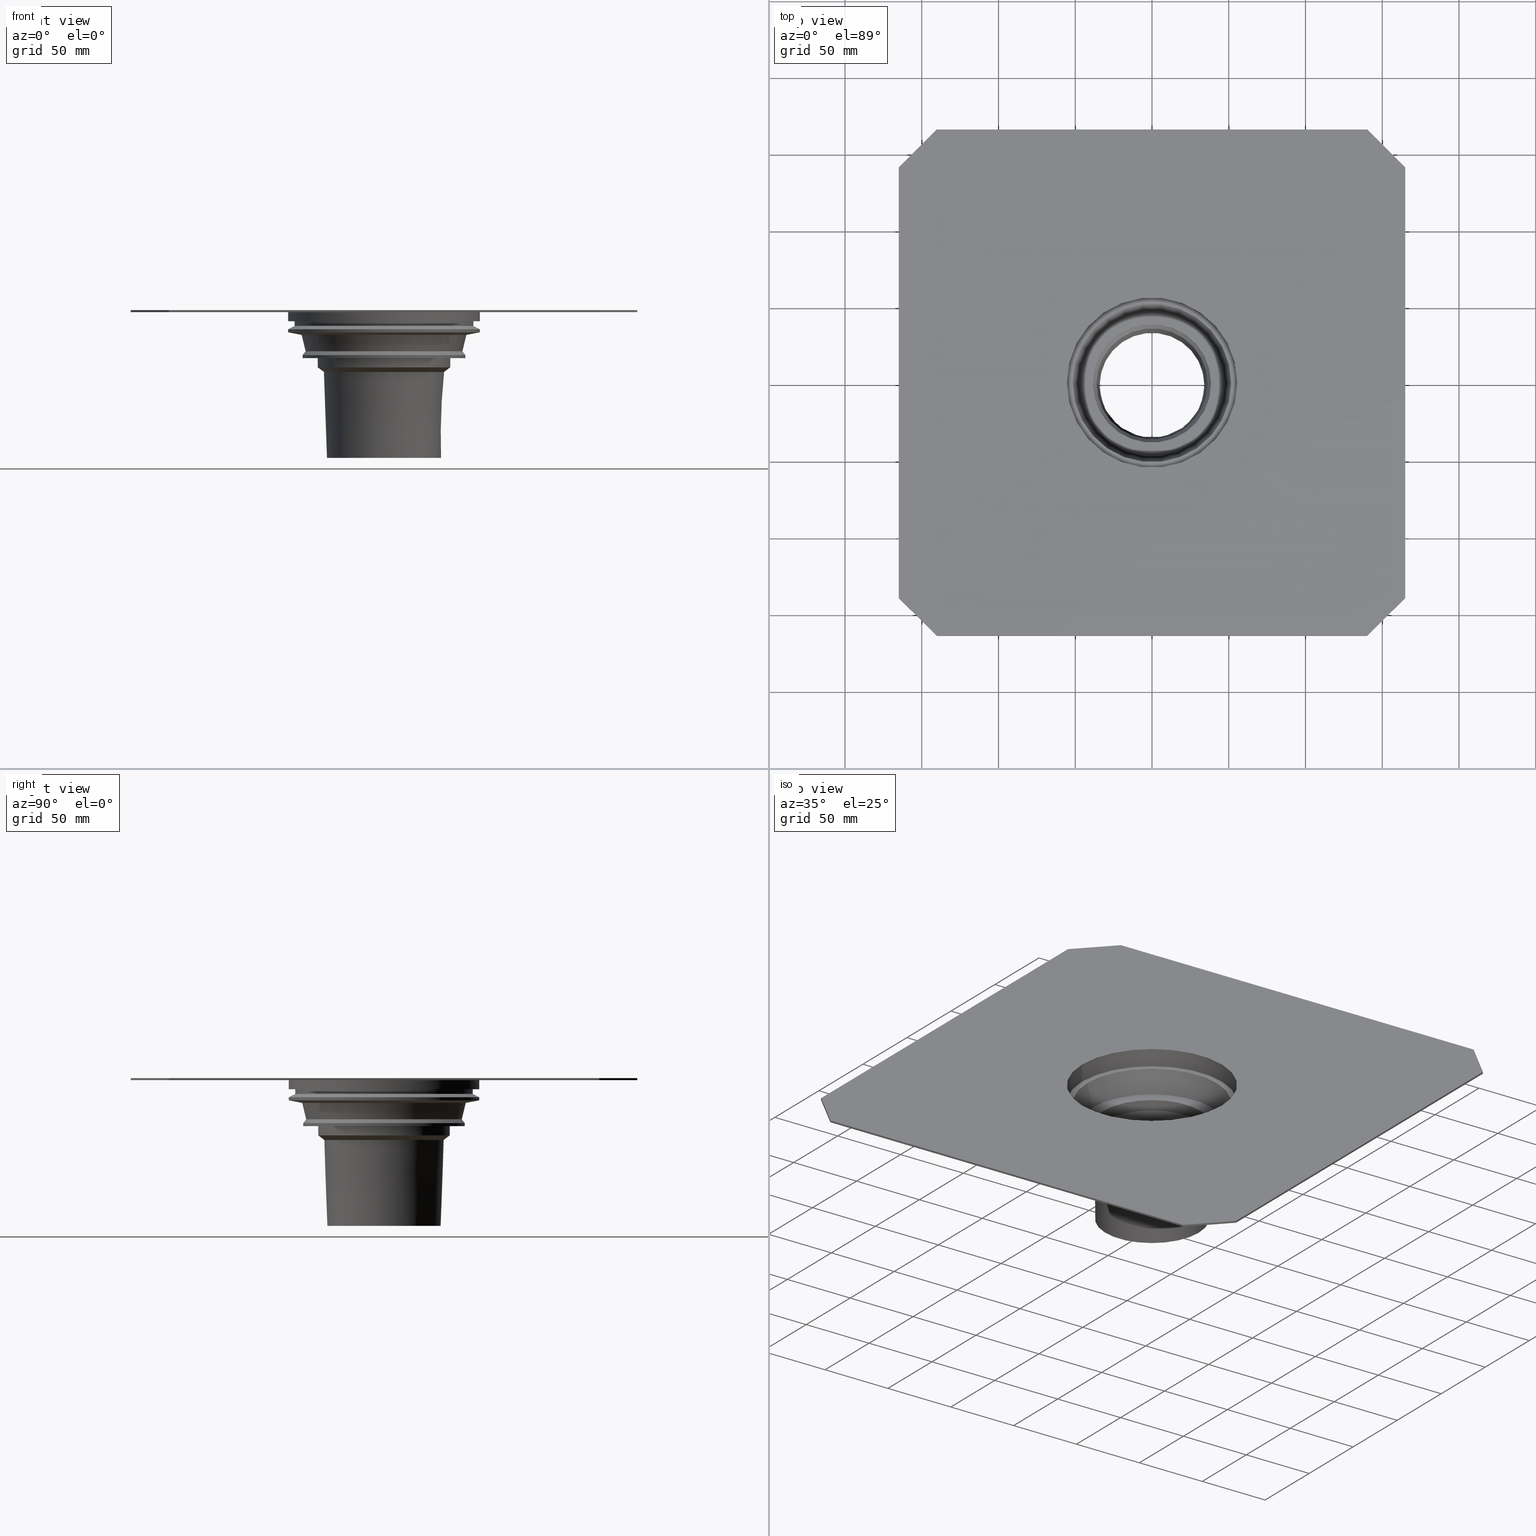
[diagram: canonical four-view strip — front | top / right | iso, engineering-drawing reading convention]
A machine part, canonical four-view strip (front | top / right | iso — engineering-drawing reading convention). The complete STEP part file that produces these views, byte-faithful:
ISO-10303-21;
HEADER;
/* Generated by software containing ST-Developer
 * from STEP Tools, Inc. (www.steptools.com) 
 */
/* OPTION: using custom renumber hook */

FILE_DESCRIPTION(
/* description */ ('STEP AP214'),
/* implementation_level */ '2;1');

FILE_NAME(
/* name */ '482087001(1)',
/* time_stamp */ '2022-12-23T08:21:58+01:00',
/* author */ ('License CC BY-ND 4.0'),
/* organization */ ('CADENAS'),
/* preprocessor_version */ 'ST-DEVELOPER v18.102',
/* originating_system */ 'PARTsolutions',
/* authorisation */ '  ');

FILE_SCHEMA (('AUTOMOTIVE_DESIGN {1 0 10303 214 3 1 1}'));
ENDSEC;

DATA;
#10=PROPERTY_DEFINITION_REPRESENTATION(#14,#12);
#11=PROPERTY_DEFINITION_REPRESENTATION(#15,#13);
#12=REPRESENTATION('',(#16),#751);
#13=REPRESENTATION('',(#17),#751);
#14=PROPERTY_DEFINITION('pmi validation property','',#756);
#15=PROPERTY_DEFINITION('pmi validation property','',#756);
#16=VALUE_REPRESENTATION_ITEM('number of annotations',COUNT_MEASURE(0.));
#17=VALUE_REPRESENTATION_ITEM('number of views',COUNT_MEASURE(0.));
#18=SHAPE_REPRESENTATION_RELATIONSHIP('','',#447,#19);
#19=ADVANCED_BREP_SHAPE_REPRESENTATION('',(#445),#751);
#20=CONICAL_SURFACE('',#467,51.5,0.237631518816238);
#21=CONICAL_SURFACE('',#473,38.498,0.532477589012008);
#22=CONICAL_SURFACE('',#475,36.141,0.0356991126793241);
#23=CONICAL_SURFACE('',#479,37.143,0.0356991126793241);
#24=CONICAL_SURFACE('',#481,39.143,0.927295218001613);
#25=CONICAL_SURFACE('',#489,52.998,0.665807706788415);
#26=CONICAL_SURFACE('',#491,51.065,0.237503939046405);
#27=CONICAL_SURFACE('',#493,53.653,1.38484091809921);
#28=CONICAL_SURFACE('',#497,62.498,1.09591323553613);
#29=LINE('',#641,#53);
#30=LINE('',#644,#54);
#31=LINE('',#646,#55);
#32=LINE('',#648,#56);
#33=LINE('',#650,#57);
#34=LINE('',#652,#58);
#35=LINE('',#654,#59);
#36=LINE('',#656,#60);
#37=LINE('',#658,#61);
#38=LINE('',#660,#62);
#39=LINE('',#662,#63);
#40=LINE('',#664,#64);
#41=LINE('',#666,#65);
#42=LINE('',#668,#66);
#43=LINE('',#670,#67);
#44=LINE('',#672,#68);
#45=LINE('',#674,#69);
#46=LINE('',#676,#70);
#47=LINE('',#678,#71);
#48=LINE('',#680,#72);
#49=LINE('',#682,#73);
#50=LINE('',#684,#74);
#51=LINE('',#686,#75);
#52=LINE('',#687,#76);
#53=VECTOR('',#512,1000.);
#54=VECTOR('',#513,1000.);
#55=VECTOR('',#514,1000.);
#56=VECTOR('',#515,1000.);
#57=VECTOR('',#518,1000.);
#58=VECTOR('',#519,1000.);
#59=VECTOR('',#520,1000.);
#60=VECTOR('',#523,1000.);
#61=VECTOR('',#524,1000.);
#62=VECTOR('',#525,1000.);
#63=VECTOR('',#528,1000.);
#64=VECTOR('',#529,1000.);
#65=VECTOR('',#530,1000.);
#66=VECTOR('',#533,1000.);
#67=VECTOR('',#534,1000.);
#68=VECTOR('',#535,1000.);
#69=VECTOR('',#538,1000.);
#70=VECTOR('',#539,1000.);
#71=VECTOR('',#540,1000.);
#72=VECTOR('',#543,1000.);
#73=VECTOR('',#544,1000.);
#74=VECTOR('',#545,1000.);
#75=VECTOR('',#548,1000.);
#76=VECTOR('',#549,1000.);
#77=PLANE('',#452);
#78=PLANE('',#453);
#79=PLANE('',#454);
#80=PLANE('',#455);
#81=PLANE('',#456);
#82=PLANE('',#457);
#83=PLANE('',#458);
#84=PLANE('',#459);
#85=PLANE('',#460);
#86=PLANE('',#465);
#87=PLANE('',#469);
#88=PLANE('',#477);
#89=PLANE('',#485);
#90=PLANE('',#500);
#91=PLANE('',#501);
#92=ORIENTED_EDGE('',*,*,#184,.T.);
#93=ORIENTED_EDGE('',*,*,#185,.T.);
#94=ORIENTED_EDGE('',*,*,#186,.F.);
#95=ORIENTED_EDGE('',*,*,#187,.T.);
#96=ORIENTED_EDGE('',*,*,#188,.T.);
#97=ORIENTED_EDGE('',*,*,#189,.F.);
#98=ORIENTED_EDGE('',*,*,#190,.F.);
#99=ORIENTED_EDGE('',*,*,#189,.T.);
#100=ORIENTED_EDGE('',*,*,#191,.T.);
#101=ORIENTED_EDGE('',*,*,#192,.F.);
#102=ORIENTED_EDGE('',*,*,#193,.F.);
#103=ORIENTED_EDGE('',*,*,#192,.T.);
#104=ORIENTED_EDGE('',*,*,#194,.T.);
#105=ORIENTED_EDGE('',*,*,#195,.F.);
#106=ORIENTED_EDGE('',*,*,#196,.F.);
#107=ORIENTED_EDGE('',*,*,#195,.T.);
#108=ORIENTED_EDGE('',*,*,#197,.T.);
#109=ORIENTED_EDGE('',*,*,#198,.F.);
#110=ORIENTED_EDGE('',*,*,#199,.F.);
#111=ORIENTED_EDGE('',*,*,#198,.T.);
#112=ORIENTED_EDGE('',*,*,#200,.T.);
#113=ORIENTED_EDGE('',*,*,#201,.F.);
#114=ORIENTED_EDGE('',*,*,#202,.F.);
#115=ORIENTED_EDGE('',*,*,#201,.T.);
#116=ORIENTED_EDGE('',*,*,#203,.T.);
#117=ORIENTED_EDGE('',*,*,#204,.F.);
#118=ORIENTED_EDGE('',*,*,#205,.F.);
#119=ORIENTED_EDGE('',*,*,#204,.T.);
#120=ORIENTED_EDGE('',*,*,#206,.T.);
#121=ORIENTED_EDGE('',*,*,#207,.F.);
#122=ORIENTED_EDGE('',*,*,#208,.F.);
#123=ORIENTED_EDGE('',*,*,#207,.T.);
#124=ORIENTED_EDGE('',*,*,#209,.T.);
#125=ORIENTED_EDGE('',*,*,#187,.F.);
#126=ORIENTED_EDGE('',*,*,#210,.T.);
#127=ORIENTED_EDGE('',*,*,#211,.F.);
#128=ORIENTED_EDGE('',*,*,#212,.T.);
#129=ORIENTED_EDGE('',*,*,#210,.F.);
#130=ORIENTED_EDGE('',*,*,#213,.T.);
#131=ORIENTED_EDGE('',*,*,#184,.F.);
#132=ORIENTED_EDGE('',*,*,#214,.T.);
#133=ORIENTED_EDGE('',*,*,#213,.F.);
#134=ORIENTED_EDGE('',*,*,#215,.T.);
#135=ORIENTED_EDGE('',*,*,#214,.F.);
#136=ORIENTED_EDGE('',*,*,#216,.T.);
#137=ORIENTED_EDGE('',*,*,#215,.F.);
#138=ORIENTED_EDGE('',*,*,#217,.T.);
#139=ORIENTED_EDGE('',*,*,#216,.F.);
#140=ORIENTED_EDGE('',*,*,#218,.T.);
#141=ORIENTED_EDGE('',*,*,#217,.F.);
#142=ORIENTED_EDGE('',*,*,#219,.T.);
#143=ORIENTED_EDGE('',*,*,#218,.F.);
#144=ORIENTED_EDGE('',*,*,#220,.T.);
#145=ORIENTED_EDGE('',*,*,#219,.F.);
#146=ORIENTED_EDGE('',*,*,#221,.T.);
#147=ORIENTED_EDGE('',*,*,#220,.F.);
#148=ORIENTED_EDGE('',*,*,#222,.T.);
#149=ORIENTED_EDGE('',*,*,#221,.F.);
#150=ORIENTED_EDGE('',*,*,#223,.T.);
#151=ORIENTED_EDGE('',*,*,#222,.F.);
#152=ORIENTED_EDGE('',*,*,#224,.T.);
#153=ORIENTED_EDGE('',*,*,#223,.F.);
#154=ORIENTED_EDGE('',*,*,#225,.T.);
#155=ORIENTED_EDGE('',*,*,#224,.F.);
#156=ORIENTED_EDGE('',*,*,#226,.T.);
#157=ORIENTED_EDGE('',*,*,#225,.F.);
#158=ORIENTED_EDGE('',*,*,#227,.T.);
#159=ORIENTED_EDGE('',*,*,#226,.F.);
#160=ORIENTED_EDGE('',*,*,#228,.T.);
#161=ORIENTED_EDGE('',*,*,#227,.F.);
#162=ORIENTED_EDGE('',*,*,#229,.T.);
#163=ORIENTED_EDGE('',*,*,#228,.F.);
#164=ORIENTED_EDGE('',*,*,#211,.T.);
#165=ORIENTED_EDGE('',*,*,#229,.F.);
#166=ORIENTED_EDGE('',*,*,#212,.F.);
#167=ORIENTED_EDGE('',*,*,#188,.F.);
#168=ORIENTED_EDGE('',*,*,#209,.F.);
#169=ORIENTED_EDGE('',*,*,#206,.F.);
#170=ORIENTED_EDGE('',*,*,#203,.F.);
#171=ORIENTED_EDGE('',*,*,#200,.F.);
#172=ORIENTED_EDGE('',*,*,#197,.F.);
#173=ORIENTED_EDGE('',*,*,#194,.F.);
#174=ORIENTED_EDGE('',*,*,#191,.F.);
#175=ORIENTED_EDGE('',*,*,#185,.F.);
#176=ORIENTED_EDGE('',*,*,#186,.T.);
#177=ORIENTED_EDGE('',*,*,#190,.T.);
#178=ORIENTED_EDGE('',*,*,#193,.T.);
#179=ORIENTED_EDGE('',*,*,#196,.T.);
#180=ORIENTED_EDGE('',*,*,#199,.T.);
#181=ORIENTED_EDGE('',*,*,#202,.T.);
#182=ORIENTED_EDGE('',*,*,#205,.T.);
#183=ORIENTED_EDGE('',*,*,#208,.T.);
#184=EDGE_CURVE('',#230,#230,#268,.T.);
#185=EDGE_CURVE('',#231,#231,#269,.T.);
#186=EDGE_CURVE('',#232,#233,#29,.T.);
#187=EDGE_CURVE('',#232,#234,#30,.T.);
#188=EDGE_CURVE('',#234,#235,#31,.T.);
#189=EDGE_CURVE('',#233,#235,#32,.T.);
#190=EDGE_CURVE('',#233,#236,#33,.T.);
#191=EDGE_CURVE('',#235,#237,#34,.T.);
#192=EDGE_CURVE('',#236,#237,#35,.T.);
#193=EDGE_CURVE('',#236,#238,#36,.T.);
#194=EDGE_CURVE('',#237,#239,#37,.T.);
#195=EDGE_CURVE('',#238,#239,#38,.T.);
#196=EDGE_CURVE('',#238,#240,#39,.T.);
#197=EDGE_CURVE('',#239,#241,#40,.T.);
#198=EDGE_CURVE('',#240,#241,#41,.T.);
#199=EDGE_CURVE('',#240,#242,#42,.T.);
#200=EDGE_CURVE('',#241,#243,#43,.T.);
#201=EDGE_CURVE('',#242,#243,#44,.T.);
#202=EDGE_CURVE('',#242,#244,#45,.T.);
#203=EDGE_CURVE('',#243,#245,#46,.T.);
#204=EDGE_CURVE('',#244,#245,#47,.T.);
#205=EDGE_CURVE('',#244,#246,#48,.T.);
#206=EDGE_CURVE('',#245,#247,#49,.T.);
#207=EDGE_CURVE('',#246,#247,#50,.T.);
#208=EDGE_CURVE('',#246,#232,#51,.T.);
#209=EDGE_CURVE('',#247,#234,#52,.T.);
#210=EDGE_CURVE('',#248,#248,#270,.T.);
#211=EDGE_CURVE('',#249,#249,#271,.T.);
#212=EDGE_CURVE('',#250,#250,#272,.F.);
#213=EDGE_CURVE('',#251,#251,#273,.T.);
#214=EDGE_CURVE('',#252,#252,#274,.T.);
#215=EDGE_CURVE('',#253,#253,#275,.T.);
#216=EDGE_CURVE('',#254,#254,#276,.T.);
#217=EDGE_CURVE('',#255,#255,#277,.T.);
#218=EDGE_CURVE('',#256,#256,#278,.T.);
#219=EDGE_CURVE('',#257,#257,#279,.T.);
#220=EDGE_CURVE('',#258,#258,#280,.T.);
#221=EDGE_CURVE('',#259,#259,#281,.T.);
#222=EDGE_CURVE('',#260,#260,#282,.T.);
#223=EDGE_CURVE('',#261,#261,#283,.T.);
#224=EDGE_CURVE('',#262,#262,#284,.T.);
#225=EDGE_CURVE('',#263,#263,#285,.T.);
#226=EDGE_CURVE('',#264,#264,#286,.T.);
#227=EDGE_CURVE('',#265,#265,#287,.T.);
#228=EDGE_CURVE('',#266,#266,#288,.T.);
#229=EDGE_CURVE('',#267,#267,#289,.T.);
#230=VERTEX_POINT('',#637);
#231=VERTEX_POINT('',#639);
#232=VERTEX_POINT('',#642);
#233=VERTEX_POINT('',#643);
#234=VERTEX_POINT('',#645);
#235=VERTEX_POINT('',#647);
#236=VERTEX_POINT('',#651);
#237=VERTEX_POINT('',#653);
#238=VERTEX_POINT('',#657);
#239=VERTEX_POINT('',#659);
#240=VERTEX_POINT('',#663);
#241=VERTEX_POINT('',#665);
#242=VERTEX_POINT('',#669);
#243=VERTEX_POINT('',#671);
#244=VERTEX_POINT('',#675);
#245=VERTEX_POINT('',#677);
#246=VERTEX_POINT('',#681);
#247=VERTEX_POINT('',#683);
#248=VERTEX_POINT('',#690);
#249=VERTEX_POINT('',#692);
#250=VERTEX_POINT('',#695);
#251=VERTEX_POINT('',#698);
#252=VERTEX_POINT('',#701);
#253=VERTEX_POINT('',#704);
#254=VERTEX_POINT('',#707);
#255=VERTEX_POINT('',#710);
#256=VERTEX_POINT('',#713);
#257=VERTEX_POINT('',#716);
#258=VERTEX_POINT('',#719);
#259=VERTEX_POINT('',#722);
#260=VERTEX_POINT('',#725);
#261=VERTEX_POINT('',#728);
#262=VERTEX_POINT('',#731);
#263=VERTEX_POINT('',#734);
#264=VERTEX_POINT('',#737);
#265=VERTEX_POINT('',#740);
#266=VERTEX_POINT('',#743);
#267=VERTEX_POINT('',#746);
#268=CIRCLE('',#450,55.5);
#269=CIRCLE('',#451,55.5);
#270=CIRCLE('',#461,62.5);
#271=CIRCLE('',#462,58.25);
#272=CIRCLE('',#464,62.5);
#273=CIRCLE('',#466,51.5);
#274=CIRCLE('',#468,47.498);
#275=CIRCLE('',#470,38.498);
#276=CIRCLE('',#472,38.498);
#277=CIRCLE('',#474,36.141);
#278=CIRCLE('',#476,34.141);
#279=CIRCLE('',#478,37.143);
#280=CIRCLE('',#480,39.143);
#281=CIRCLE('',#482,43.143);
#282=CIRCLE('',#484,43.143);
#283=CIRCLE('',#486,52.998);
#284=CIRCLE('',#488,52.998);
#285=CIRCLE('',#490,51.065);
#286=CIRCLE('',#492,53.653);
#287=CIRCLE('',#494,62.498);
#288=CIRCLE('',#496,62.498);
#289=CIRCLE('',#498,58.25);
#290=EDGE_LOOP('',(#92));
#291=EDGE_LOOP('',(#93));
#292=EDGE_LOOP('',(#94,#95,#96,#97));
#293=EDGE_LOOP('',(#98,#99,#100,#101));
#294=EDGE_LOOP('',(#102,#103,#104,#105));
#295=EDGE_LOOP('',(#106,#107,#108,#109));
#296=EDGE_LOOP('',(#110,#111,#112,#113));
#297=EDGE_LOOP('',(#114,#115,#116,#117));
#298=EDGE_LOOP('',(#118,#119,#120,#121));
#299=EDGE_LOOP('',(#122,#123,#124,#125));
#300=EDGE_LOOP('',(#126));
#301=EDGE_LOOP('',(#127));
#302=EDGE_LOOP('',(#128));
#303=EDGE_LOOP('',(#129));
#304=EDGE_LOOP('',(#130));
#305=EDGE_LOOP('',(#131));
#306=EDGE_LOOP('',(#132));
#307=EDGE_LOOP('',(#133));
#308=EDGE_LOOP('',(#134));
#309=EDGE_LOOP('',(#135));
#310=EDGE_LOOP('',(#136));
#311=EDGE_LOOP('',(#137));
#312=EDGE_LOOP('',(#138));
#313=EDGE_LOOP('',(#139));
#314=EDGE_LOOP('',(#140));
#315=EDGE_LOOP('',(#141));
#316=EDGE_LOOP('',(#142));
#317=EDGE_LOOP('',(#143));
#318=EDGE_LOOP('',(#144));
#319=EDGE_LOOP('',(#145));
#320=EDGE_LOOP('',(#146));
#321=EDGE_LOOP('',(#147));
#322=EDGE_LOOP('',(#148));
#323=EDGE_LOOP('',(#149));
#324=EDGE_LOOP('',(#150));
#325=EDGE_LOOP('',(#151));
#326=EDGE_LOOP('',(#152));
#327=EDGE_LOOP('',(#153));
#328=EDGE_LOOP('',(#154));
#329=EDGE_LOOP('',(#155));
#330=EDGE_LOOP('',(#156));
#331=EDGE_LOOP('',(#157));
#332=EDGE_LOOP('',(#158));
#333=EDGE_LOOP('',(#159));
#334=EDGE_LOOP('',(#160));
#335=EDGE_LOOP('',(#161));
#336=EDGE_LOOP('',(#162));
#337=EDGE_LOOP('',(#163));
#338=EDGE_LOOP('',(#164));
#339=EDGE_LOOP('',(#165));
#340=EDGE_LOOP('',(#166));
#341=EDGE_LOOP('',(#167,#168,#169,#170,#171,#172,#173,#174));
#342=EDGE_LOOP('',(#175));
#343=EDGE_LOOP('',(#176,#177,#178,#179,#180,#181,#182,#183));
#344=FACE_BOUND('',#290,.T.);
#345=FACE_BOUND('',#291,.T.);
#346=FACE_BOUND('',#292,.T.);
#347=FACE_BOUND('',#293,.T.);
#348=FACE_BOUND('',#294,.T.);
#349=FACE_BOUND('',#295,.T.);
#350=FACE_BOUND('',#296,.T.);
#351=FACE_BOUND('',#297,.T.);
#352=FACE_BOUND('',#298,.T.);
#353=FACE_BOUND('',#299,.T.);
#354=FACE_BOUND('',#300,.T.);
#355=FACE_BOUND('',#301,.T.);
#356=FACE_BOUND('',#302,.T.);
#357=FACE_BOUND('',#303,.T.);
#358=FACE_BOUND('',#304,.T.);
#359=FACE_BOUND('',#305,.T.);
#360=FACE_BOUND('',#306,.T.);
#361=FACE_BOUND('',#307,.T.);
#362=FACE_BOUND('',#308,.T.);
#363=FACE_BOUND('',#309,.T.);
#364=FACE_BOUND('',#310,.T.);
#365=FACE_BOUND('',#311,.T.);
#366=FACE_BOUND('',#312,.T.);
#367=FACE_BOUND('',#313,.T.);
#368=FACE_BOUND('',#314,.T.);
#369=FACE_BOUND('',#315,.T.);
#370=FACE_BOUND('',#316,.T.);
#371=FACE_BOUND('',#317,.T.);
#372=FACE_BOUND('',#318,.T.);
#373=FACE_BOUND('',#319,.T.);
#374=FACE_BOUND('',#320,.T.);
#375=FACE_BOUND('',#321,.T.);
#376=FACE_BOUND('',#322,.T.);
#377=FACE_BOUND('',#323,.T.);
#378=FACE_BOUND('',#324,.T.);
#379=FACE_BOUND('',#325,.T.);
#380=FACE_BOUND('',#326,.T.);
#381=FACE_BOUND('',#327,.T.);
#382=FACE_BOUND('',#328,.T.);
#383=FACE_BOUND('',#329,.T.);
#384=FACE_BOUND('',#330,.T.);
#385=FACE_BOUND('',#331,.T.);
#386=FACE_BOUND('',#332,.T.);
#387=FACE_BOUND('',#333,.T.);
#388=FACE_BOUND('',#334,.T.);
#389=FACE_BOUND('',#335,.T.);
#390=FACE_BOUND('',#336,.T.);
#391=FACE_BOUND('',#337,.T.);
#392=FACE_BOUND('',#338,.T.);
#393=FACE_BOUND('',#339,.T.);
#394=FACE_BOUND('',#340,.T.);
#395=FACE_BOUND('',#341,.T.);
#396=FACE_BOUND('',#342,.T.);
#397=FACE_BOUND('',#343,.T.);
#398=CYLINDRICAL_SURFACE('',#449,55.5);
#399=CYLINDRICAL_SURFACE('',#463,62.5);
#400=CYLINDRICAL_SURFACE('',#471,38.498);
#401=CYLINDRICAL_SURFACE('',#483,43.143);
#402=CYLINDRICAL_SURFACE('',#487,52.998);
#403=CYLINDRICAL_SURFACE('',#495,62.498);
#404=CYLINDRICAL_SURFACE('',#499,58.25);
#405=ADVANCED_FACE('',(#344,#345),#398,.F.);
#406=ADVANCED_FACE('',(#346),#77,.F.);
#407=ADVANCED_FACE('',(#347),#78,.F.);
#408=ADVANCED_FACE('',(#348),#79,.F.);
#409=ADVANCED_FACE('',(#349),#80,.F.);
#410=ADVANCED_FACE('',(#350),#81,.F.);
#411=ADVANCED_FACE('',(#351),#82,.F.);
#412=ADVANCED_FACE('',(#352),#83,.F.);
#413=ADVANCED_FACE('',(#353),#84,.F.);
#414=ADVANCED_FACE('',(#354,#355),#85,.T.);
#415=ADVANCED_FACE('',(#356,#357),#399,.T.);
#416=ADVANCED_FACE('',(#358,#359),#86,.T.);
#417=ADVANCED_FACE('',(#360,#361),#20,.F.);
#418=ADVANCED_FACE('',(#362,#363),#87,.T.);
#419=ADVANCED_FACE('',(#364,#365),#400,.F.);
#420=ADVANCED_FACE('',(#366,#367),#21,.F.);
#421=ADVANCED_FACE('',(#368,#369),#22,.F.);
#422=ADVANCED_FACE('',(#370,#371),#88,.T.);
#423=ADVANCED_FACE('',(#372,#373),#23,.T.);
#424=ADVANCED_FACE('',(#374,#375),#24,.T.);
#425=ADVANCED_FACE('',(#376,#377),#401,.T.);
#426=ADVANCED_FACE('',(#378,#379),#89,.T.);
#427=ADVANCED_FACE('',(#380,#381),#402,.T.);
#428=ADVANCED_FACE('',(#382,#383),#25,.T.);
#429=ADVANCED_FACE('',(#384,#385),#26,.T.);
#430=ADVANCED_FACE('',(#386,#387),#27,.T.);
#431=ADVANCED_FACE('',(#388,#389),#403,.T.);
#432=ADVANCED_FACE('',(#390,#391),#28,.T.);
#433=ADVANCED_FACE('',(#392,#393),#404,.T.);
#434=ADVANCED_FACE('',(#394,#395),#90,.F.);
#435=ADVANCED_FACE('',(#396,#397),#91,.T.);
#436=CLOSED_SHELL('',(#405,#406,#407,#408,#409,#410,#411,#412,#413,#414,
#415,#416,#417,#418,#419,#420,#421,#422,#423,#424,#425,#426,#427,#428,#429,
#430,#431,#432,#433,#434,#435));
#437=STYLED_ITEM('',(#438),#445);
#438=PRESENTATION_STYLE_ASSIGNMENT((#439));
#439=SURFACE_STYLE_USAGE(.BOTH.,#440);
#440=SURFACE_SIDE_STYLE('',(#441));
#441=SURFACE_STYLE_FILL_AREA(#442);
#442=FILL_AREA_STYLE('',(#443));
#443=FILL_AREA_STYLE_COLOUR('',#444);
#444=COLOUR_RGB('',0.689999997615814,0.689999997615814,0.689999997615814);
#445=MANIFOLD_SOLID_BREP('482087001(1)',#436);
#446=SHAPE_DEFINITION_REPRESENTATION(#756,#447);
#447=SHAPE_REPRESENTATION('482087001(1)',(#448),#751);
#448=AXIS2_PLACEMENT_3D('',#634,#502,#503);
#449=AXIS2_PLACEMENT_3D('',#635,#504,#505);
#450=AXIS2_PLACEMENT_3D('',#636,#506,#507);
#451=AXIS2_PLACEMENT_3D('',#638,#508,#509);
#452=AXIS2_PLACEMENT_3D('',#640,#510,#511);
#453=AXIS2_PLACEMENT_3D('',#649,#516,#517);
#454=AXIS2_PLACEMENT_3D('',#655,#521,#522);
#455=AXIS2_PLACEMENT_3D('',#661,#526,#527);
#456=AXIS2_PLACEMENT_3D('',#667,#531,#532);
#457=AXIS2_PLACEMENT_3D('',#673,#536,#537);
#458=AXIS2_PLACEMENT_3D('',#679,#541,#542);
#459=AXIS2_PLACEMENT_3D('',#685,#546,#547);
#460=AXIS2_PLACEMENT_3D('',#688,#550,#551);
#461=AXIS2_PLACEMENT_3D('',#689,#552,#553);
#462=AXIS2_PLACEMENT_3D('',#691,#554,#555);
#463=AXIS2_PLACEMENT_3D('',#693,#556,#557);
#464=AXIS2_PLACEMENT_3D('',#694,#558,#559);
#465=AXIS2_PLACEMENT_3D('',#696,#560,#561);
#466=AXIS2_PLACEMENT_3D('',#697,#562,#563);
#467=AXIS2_PLACEMENT_3D('',#699,#564,#565);
#468=AXIS2_PLACEMENT_3D('',#700,#566,#567);
#469=AXIS2_PLACEMENT_3D('',#702,#568,#569);
#470=AXIS2_PLACEMENT_3D('',#703,#570,#571);
#471=AXIS2_PLACEMENT_3D('',#705,#572,#573);
#472=AXIS2_PLACEMENT_3D('',#706,#574,#575);
#473=AXIS2_PLACEMENT_3D('',#708,#576,#577);
#474=AXIS2_PLACEMENT_3D('',#709,#578,#579);
#475=AXIS2_PLACEMENT_3D('',#711,#580,#581);
#476=AXIS2_PLACEMENT_3D('',#712,#582,#583);
#477=AXIS2_PLACEMENT_3D('',#714,#584,#585);
#478=AXIS2_PLACEMENT_3D('',#715,#586,#587);
#479=AXIS2_PLACEMENT_3D('',#717,#588,#589);
#480=AXIS2_PLACEMENT_3D('',#718,#590,#591);
#481=AXIS2_PLACEMENT_3D('',#720,#592,#593);
#482=AXIS2_PLACEMENT_3D('',#721,#594,#595);
#483=AXIS2_PLACEMENT_3D('',#723,#596,#597);
#484=AXIS2_PLACEMENT_3D('',#724,#598,#599);
#485=AXIS2_PLACEMENT_3D('',#726,#600,#601);
#486=AXIS2_PLACEMENT_3D('',#727,#602,#603);
#487=AXIS2_PLACEMENT_3D('',#729,#604,#605);
#488=AXIS2_PLACEMENT_3D('',#730,#606,#607);
#489=AXIS2_PLACEMENT_3D('',#732,#608,#609);
#490=AXIS2_PLACEMENT_3D('',#733,#610,#611);
#491=AXIS2_PLACEMENT_3D('',#735,#612,#613);
#492=AXIS2_PLACEMENT_3D('',#736,#614,#615);
#493=AXIS2_PLACEMENT_3D('',#738,#616,#617);
#494=AXIS2_PLACEMENT_3D('',#739,#618,#619);
#495=AXIS2_PLACEMENT_3D('',#741,#620,#621);
#496=AXIS2_PLACEMENT_3D('',#742,#622,#623);
#497=AXIS2_PLACEMENT_3D('',#744,#624,#625);
#498=AXIS2_PLACEMENT_3D('',#745,#626,#627);
#499=AXIS2_PLACEMENT_3D('',#747,#628,#629);
#500=AXIS2_PLACEMENT_3D('',#748,#630,#631);
#501=AXIS2_PLACEMENT_3D('',#749,#632,#633);
#502=DIRECTION('',(0.,0.,1.));
#503=DIRECTION('',(1.,0.,0.));
#504=DIRECTION('',(0.,0.,-1.));
#505=DIRECTION('',(-1.,0.,0.));
#506=DIRECTION('',(0.,0.,-1.));
#507=DIRECTION('',(-1.,0.,0.));
#508=DIRECTION('',(-1.91329795144501E-18,0.,1.));
#509=DIRECTION('',(1.,0.,1.91329795144501E-18));
#510=DIRECTION('',(1.,0.,0.));
#511=DIRECTION('',(0.,0.,-1.));
#512=DIRECTION('',(0.,-1.,0.));
#513=DIRECTION('',(0.,0.,-1.));
#514=DIRECTION('',(0.,-1.,0.));
#515=DIRECTION('',(0.,0.,-1.));
#516=DIRECTION('',(0.707106781186548,0.707106781186548,0.));
#517=DIRECTION('',(-0.707106781186548,0.707106781186548,0.));
#518=DIRECTION('',(0.707106781186548,-0.707106781186548,1.35290595589709E-18));
#519=DIRECTION('',(0.707106781186547,-0.707106781186547,0.));
#520=DIRECTION('',(0.,0.,-1.));
#521=DIRECTION('',(0.,1.,0.));
#522=DIRECTION('',(0.,0.,1.));
#523=DIRECTION('',(1.,0.,1.91329795144501E-18));
#524=DIRECTION('',(1.,0.,0.));
#525=DIRECTION('',(0.,0.,-1.));
#526=DIRECTION('',(-0.707106781186548,0.707106781186548,0.));
#527=DIRECTION('',(-0.707106781186548,-0.707106781186548,0.));
#528=DIRECTION('',(0.707106781186548,0.707106781186548,1.35290595589709E-18));
#529=DIRECTION('',(0.707106781186547,0.707106781186547,0.));
#530=DIRECTION('',(0.,0.,-1.));
#531=DIRECTION('',(-1.,0.,0.));
#532=DIRECTION('',(0.,0.,1.));
#533=DIRECTION('',(0.,1.,0.));
#534=DIRECTION('',(0.,1.,0.));
#535=DIRECTION('',(0.,0.,-1.));
#536=DIRECTION('',(-0.707106781186548,-0.707106781186548,0.));
#537=DIRECTION('',(0.707106781186548,-0.707106781186548,0.));
#538=DIRECTION('',(-0.707106781186548,0.707106781186548,-1.35290595589709E-18));
#539=DIRECTION('',(-0.707106781186547,0.707106781186547,0.));
#540=DIRECTION('',(0.,0.,-1.));
#541=DIRECTION('',(0.,-1.,0.));
#542=DIRECTION('',(0.,0.,-1.));
#543=DIRECTION('',(-1.,0.,-1.91329795144501E-18));
#544=DIRECTION('',(-1.,0.,0.));
#545=DIRECTION('',(0.,0.,-1.));
#546=DIRECTION('',(0.707106781186548,-0.707106781186548,0.));
#547=DIRECTION('',(0.707106781186548,0.707106781186548,0.));
#548=DIRECTION('',(-0.707106781186548,-0.707106781186548,-1.35290595589709E-18));
#549=DIRECTION('',(-0.707106781186547,-0.707106781186547,0.));
#550=DIRECTION('',(0.,0.,-1.));
#551=DIRECTION('',(-1.,0.,0.));
#552=DIRECTION('',(0.,0.,-1.));
#553=DIRECTION('',(-1.,0.,0.));
#554=DIRECTION('',(0.,0.,-1.));
#555=DIRECTION('',(-1.,0.,0.));
#556=DIRECTION('',(0.,0.,-1.));
#557=DIRECTION('',(-1.,0.,0.));
#558=DIRECTION('',(0.,0.,1.));
#559=DIRECTION('',(1.,0.,0.));
#560=DIRECTION('',(0.,0.,1.));
#561=DIRECTION('',(1.,0.,0.));
#562=DIRECTION('',(0.,0.,-1.));
#563=DIRECTION('',(-1.,0.,0.));
#564=DIRECTION('',(0.,0.,1.));
#565=DIRECTION('',(1.,0.,0.));
#566=DIRECTION('',(0.,0.,-1.));
#567=DIRECTION('',(-1.,0.,0.));
#568=DIRECTION('',(0.,0.,1.));
#569=DIRECTION('',(1.,0.,0.));
#570=DIRECTION('',(0.,0.,-1.));
#571=DIRECTION('',(-1.,0.,0.));
#572=DIRECTION('',(0.,0.,-1.));
#573=DIRECTION('',(-1.,0.,0.));
#574=DIRECTION('',(0.,0.,-1.));
#575=DIRECTION('',(-1.,0.,0.));
#576=DIRECTION('',(0.,0.,1.));
#577=DIRECTION('',(1.,0.,0.));
#578=DIRECTION('',(0.,0.,-1.));
#579=DIRECTION('',(-1.,0.,0.));
#580=DIRECTION('',(0.,0.,1.));
#581=DIRECTION('',(1.,0.,0.));
#582=DIRECTION('',(0.,0.,-1.));
#583=DIRECTION('',(-1.,0.,0.));
#584=DIRECTION('',(0.,0.,-1.));
#585=DIRECTION('',(-1.,0.,0.));
#586=DIRECTION('',(0.,0.,-1.));
#587=DIRECTION('',(-1.,0.,0.));
#588=DIRECTION('',(0.,0.,1.));
#589=DIRECTION('',(1.,0.,0.));
#590=DIRECTION('',(0.,0.,-1.));
#591=DIRECTION('',(-1.,0.,0.));
#592=DIRECTION('',(0.,0.,1.));
#593=DIRECTION('',(1.,0.,0.));
#594=DIRECTION('',(0.,0.,-1.));
#595=DIRECTION('',(-1.,0.,0.));
#596=DIRECTION('',(0.,0.,-1.));
#597=DIRECTION('',(-1.,0.,0.));
#598=DIRECTION('',(0.,0.,-1.));
#599=DIRECTION('',(-1.,0.,0.));
#600=DIRECTION('',(0.,0.,-1.));
#601=DIRECTION('',(-1.,0.,0.));
#602=DIRECTION('',(0.,0.,-1.));
#603=DIRECTION('',(-1.,0.,0.));
#604=DIRECTION('',(0.,0.,-1.));
#605=DIRECTION('',(-1.,0.,0.));
#606=DIRECTION('',(0.,0.,-1.));
#607=DIRECTION('',(-1.,0.,0.));
#608=DIRECTION('',(0.,0.,-1.));
#609=DIRECTION('',(-1.,0.,0.));
#610=DIRECTION('',(0.,0.,-1.));
#611=DIRECTION('',(-1.,0.,0.));
#612=DIRECTION('',(0.,0.,1.));
#613=DIRECTION('',(1.,0.,0.));
#614=DIRECTION('',(0.,0.,-1.));
#615=DIRECTION('',(-1.,0.,0.));
#616=DIRECTION('',(0.,0.,1.));
#617=DIRECTION('',(1.,0.,0.));
#618=DIRECTION('',(0.,0.,-1.));
#619=DIRECTION('',(-1.,0.,0.));
#620=DIRECTION('',(0.,0.,-1.));
#621=DIRECTION('',(-1.,0.,0.));
#622=DIRECTION('',(0.,0.,-1.));
#623=DIRECTION('',(-1.,0.,0.));
#624=DIRECTION('',(0.,0.,-1.));
#625=DIRECTION('',(-1.,0.,0.));
#626=DIRECTION('',(0.,0.,-1.));
#627=DIRECTION('',(-1.,0.,0.));
#628=DIRECTION('',(0.,0.,-1.));
#629=DIRECTION('',(-1.,0.,0.));
#630=DIRECTION('',(0.,0.,1.));
#631=DIRECTION('',(1.,0.,0.));
#632=DIRECTION('',(-1.91329795144501E-18,0.,1.));
#633=DIRECTION('',(1.,0.,1.91329795144501E-18));
#634=CARTESIAN_POINT('',(0.,0.,0.));
#635=CARTESIAN_POINT('',(0.,0.,-50.));
#636=CARTESIAN_POINT('',(0.,0.,-11.));
#637=CARTESIAN_POINT('',(-55.5,0.,-11.));
#638=CARTESIAN_POINT('',(0.,0.,1.3));
#639=CARTESIAN_POINT('',(55.5,0.,1.3));
#640=CARTESIAN_POINT('',(-165.,140.251262658471,5.));
#641=CARTESIAN_POINT('',(-165.,140.251262658471,1.3));
#642=CARTESIAN_POINT('',(-165.,140.251262658471,1.3));
#643=CARTESIAN_POINT('',(-165.,-140.251262658471,1.3));
#644=CARTESIAN_POINT('',(-165.,140.251262658471,5.));
#645=CARTESIAN_POINT('',(-165.,140.251262658471,0.));
#646=CARTESIAN_POINT('',(-165.,140.251262658471,0.));
#647=CARTESIAN_POINT('',(-165.,-140.251262658471,0.));
#648=CARTESIAN_POINT('',(-165.,-140.251262658471,5.));
#649=CARTESIAN_POINT('',(-165.,-140.251262658471,5.));
#650=CARTESIAN_POINT('',(-165.,-140.251262658471,1.3));
#651=CARTESIAN_POINT('',(-140.251262658471,-165.,1.3));
#652=CARTESIAN_POINT('',(-165.,-140.251262658471,0.));
#653=CARTESIAN_POINT('',(-140.251262658471,-165.,0.));
#654=CARTESIAN_POINT('',(-140.251262658471,-165.,5.));
#655=CARTESIAN_POINT('',(-140.251262658471,-165.,5.));
#656=CARTESIAN_POINT('',(-140.251262658471,-165.,1.3));
#657=CARTESIAN_POINT('',(140.251262658471,-165.,1.3));
#658=CARTESIAN_POINT('',(-140.251262658471,-165.,0.));
#659=CARTESIAN_POINT('',(140.251262658471,-165.,0.));
#660=CARTESIAN_POINT('',(140.251262658471,-165.,5.));
#661=CARTESIAN_POINT('',(140.251262658471,-165.,5.));
#662=CARTESIAN_POINT('',(140.251262658471,-165.,1.3));
#663=CARTESIAN_POINT('',(165.,-140.251262658471,1.3));
#664=CARTESIAN_POINT('',(140.251262658471,-165.,0.));
#665=CARTESIAN_POINT('',(165.,-140.251262658471,0.));
#666=CARTESIAN_POINT('',(165.,-140.251262658471,5.));
#667=CARTESIAN_POINT('',(165.,-140.251262658471,5.));
#668=CARTESIAN_POINT('',(165.,-140.251262658471,1.3));
#669=CARTESIAN_POINT('',(165.,140.251262658471,1.3));
#670=CARTESIAN_POINT('',(165.,-140.251262658471,0.));
#671=CARTESIAN_POINT('',(165.,140.251262658471,0.));
#672=CARTESIAN_POINT('',(165.,140.251262658471,5.));
#673=CARTESIAN_POINT('',(165.,140.251262658471,5.));
#674=CARTESIAN_POINT('',(165.,140.251262658471,1.3));
#675=CARTESIAN_POINT('',(140.251262658471,165.,1.3));
#676=CARTESIAN_POINT('',(165.,140.251262658471,0.));
#677=CARTESIAN_POINT('',(140.251262658471,165.,0.));
#678=CARTESIAN_POINT('',(140.251262658471,165.,5.));
#679=CARTESIAN_POINT('',(140.251262658471,165.,5.));
#680=CARTESIAN_POINT('',(140.251262658471,165.,1.3));
#681=CARTESIAN_POINT('',(-140.251262658471,165.,1.3));
#682=CARTESIAN_POINT('',(140.251262658471,165.,0.));
#683=CARTESIAN_POINT('',(-140.251262658471,165.,0.));
#684=CARTESIAN_POINT('',(-140.251262658471,165.,5.));
#685=CARTESIAN_POINT('',(-140.251262658471,165.,5.));
#686=CARTESIAN_POINT('',(-140.251262658471,165.,1.3));
#687=CARTESIAN_POINT('',(-140.251262658471,165.,0.));
#688=CARTESIAN_POINT('',(-58.25,0.,-6.00000000000001));
#689=CARTESIAN_POINT('',(0.,0.,-6.00000000000001));
#690=CARTESIAN_POINT('',(-62.5,0.,-6.00000000000001));
#691=CARTESIAN_POINT('',(0.,0.,-6.00000000000001));
#692=CARTESIAN_POINT('',(-58.25,0.,-6.00000000000001));
#693=CARTESIAN_POINT('',(0.,0.,-50.));
#694=CARTESIAN_POINT('',(0.,0.,0.));
#695=CARTESIAN_POINT('',(62.5,0.,0.));
#696=CARTESIAN_POINT('',(-55.5,0.,-11.));
#697=CARTESIAN_POINT('',(0.,0.,-11.));
#698=CARTESIAN_POINT('',(-51.5,0.,-11.));
#699=CARTESIAN_POINT('',(0.,0.,-11.));
#700=CARTESIAN_POINT('',(0.,0.,-27.523));
#701=CARTESIAN_POINT('',(-47.498,0.,-27.523));
#702=CARTESIAN_POINT('',(-47.498,0.,-27.523));
#703=CARTESIAN_POINT('',(0.,0.,-27.523));
#704=CARTESIAN_POINT('',(-38.498,0.,-27.523));
#705=CARTESIAN_POINT('',(0.,0.,-50.));
#706=CARTESIAN_POINT('',(0.,0.,-35.));
#707=CARTESIAN_POINT('',(-38.498,0.,-35.));
#708=CARTESIAN_POINT('',(0.,0.,-35.));
#709=CARTESIAN_POINT('',(0.,0.,-39.));
#710=CARTESIAN_POINT('',(-36.141,0.,-39.));
#711=CARTESIAN_POINT('',(0.,0.,-39.));
#712=CARTESIAN_POINT('',(0.,0.,-95.));
#713=CARTESIAN_POINT('',(-34.141,0.,-95.));
#714=CARTESIAN_POINT('',(-34.141,0.,-95.));
#715=CARTESIAN_POINT('',(0.,0.,-95.));
#716=CARTESIAN_POINT('',(-37.143,0.,-95.));
#717=CARTESIAN_POINT('',(0.,0.,-95.));
#718=CARTESIAN_POINT('',(0.,0.,-39.));
#719=CARTESIAN_POINT('',(-39.143,0.,-39.));
#720=CARTESIAN_POINT('',(0.,0.,-39.));
#721=CARTESIAN_POINT('',(0.,0.,-36.));
#722=CARTESIAN_POINT('',(-43.143,0.,-36.));
#723=CARTESIAN_POINT('',(0.,0.,-50.));
#724=CARTESIAN_POINT('',(0.,0.,-30.));
#725=CARTESIAN_POINT('',(-43.143,0.,-30.));
#726=CARTESIAN_POINT('',(-43.143,0.,-30.));
#727=CARTESIAN_POINT('',(0.,0.,-30.));
#728=CARTESIAN_POINT('',(-52.998,0.,-30.));
#729=CARTESIAN_POINT('',(0.,0.,-50.));
#730=CARTESIAN_POINT('',(0.,0.,-28.));
#731=CARTESIAN_POINT('',(-52.998,0.,-28.));
#732=CARTESIAN_POINT('',(0.,0.,-28.));
#733=CARTESIAN_POINT('',(0.,0.,-25.539));
#734=CARTESIAN_POINT('',(-51.065,0.,-25.539));
#735=CARTESIAN_POINT('',(0.,0.,-25.539));
#736=CARTESIAN_POINT('',(0.,0.,-14.848));
#737=CARTESIAN_POINT('',(-53.653,0.,-14.848));
#738=CARTESIAN_POINT('',(0.,0.,-14.848));
#739=CARTESIAN_POINT('',(0.,0.,-13.184));
#740=CARTESIAN_POINT('',(-62.498,0.,-13.184));
#741=CARTESIAN_POINT('',(0.,0.,-50.));
#742=CARTESIAN_POINT('',(0.,0.,-11.184));
#743=CARTESIAN_POINT('',(-62.498,0.,-11.184));
#744=CARTESIAN_POINT('',(0.,0.,-11.184));
#745=CARTESIAN_POINT('',(0.,0.,-9.00000000000001));
#746=CARTESIAN_POINT('',(-58.25,0.,-9.00000000000001));
#747=CARTESIAN_POINT('',(0.,0.,-50.));
#748=CARTESIAN_POINT('',(0.,0.,0.));
#749=CARTESIAN_POINT('',(170.,170.,1.3));
#750=MECHANICAL_DESIGN_GEOMETRIC_PRESENTATION_REPRESENTATION('',(#437),
#751);
#751=(
GEOMETRIC_REPRESENTATION_CONTEXT(3)
GLOBAL_UNCERTAINTY_ASSIGNED_CONTEXT((#752))
GLOBAL_UNIT_ASSIGNED_CONTEXT((#755,#754,#753))
REPRESENTATION_CONTEXT('482087001(1)','TOP_LEVEL_ASSEMBLY_PART')
);
#752=UNCERTAINTY_MEASURE_WITH_UNIT(LENGTH_MEASURE(0.005),#755,
'DISTANCE_ACCURACY_VALUE','Maximum Tolerance applied to model');
#753=(
NAMED_UNIT(*)
SI_UNIT($,.STERADIAN.)
SOLID_ANGLE_UNIT()
);
#754=(
NAMED_UNIT(*)
PLANE_ANGLE_UNIT()
SI_UNIT($,.RADIAN.)
);
#755=(
LENGTH_UNIT()
NAMED_UNIT(*)
SI_UNIT(.MILLI.,.METRE.)
);
#756=PRODUCT_DEFINITION_SHAPE('','',#757);
#757=PRODUCT_DEFINITION('','',#759,#758);
#758=PRODUCT_DEFINITION_CONTEXT('',#765,'design');
#759=PRODUCT_DEFINITION_FORMATION_WITH_SPECIFIED_SOURCE('','',#761,
 .NOT_KNOWN.);
#760=PRODUCT_RELATED_PRODUCT_CATEGORY('','',(#761));
#761=PRODUCT('482087001(1)','482087001(1)','482087001(1)',(#763));
#762=PRODUCT_CATEGORY('','');
#763=PRODUCT_CONTEXT('',#765,'mechanical');
#764=APPLICATION_PROTOCOL_DEFINITION('international standard',
'automotive_design',2010,#765);
#765=APPLICATION_CONTEXT(
'core data for automotive mechanical design processes');
ENDSEC;
END-ISO-10303-21;
